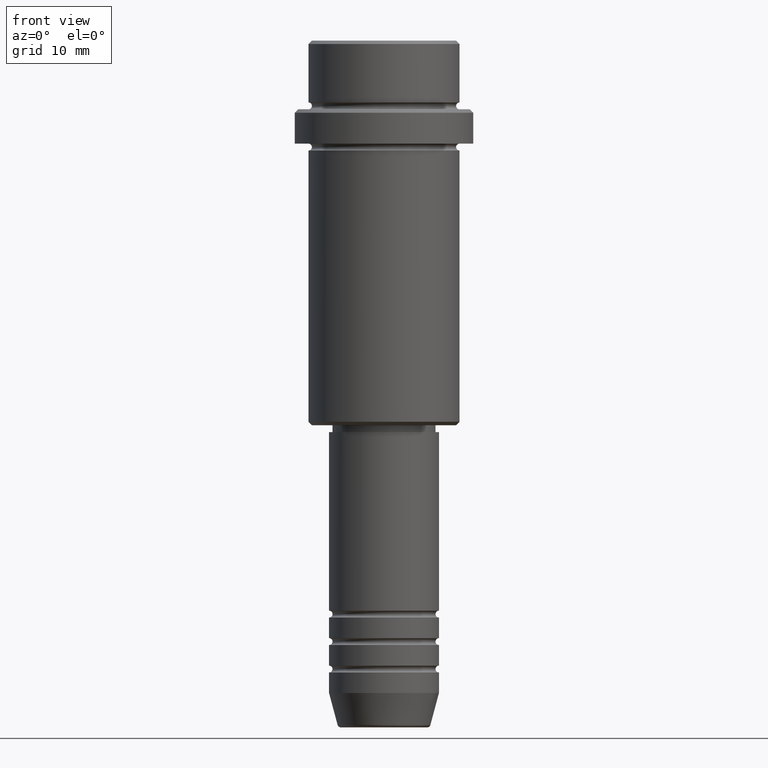
[diagram: clean part render]
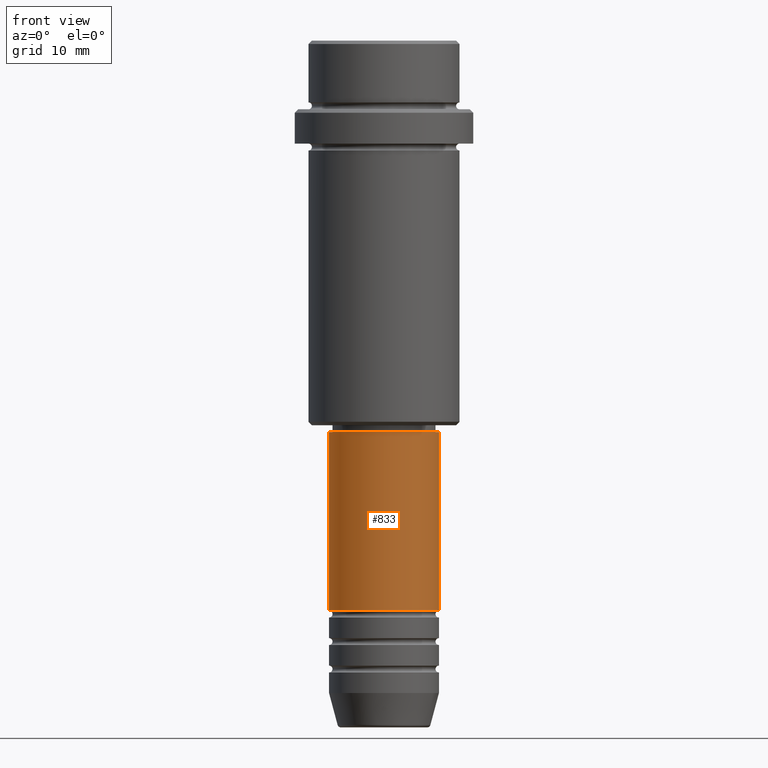
[diagram: same view with one face highlighted and labeled with its STEP entity id]
A machine part, front view. The second image highlights one B-rep face of the part: STEP entity #833.
In plain terms, the highlighted cylindrical surface (partial cylindrical patch) has radius 8 mm, axis along (-0, -0, 1).
Its self-contained STEP definition (entity closure, byte-faithful):
#33 = VERTEX_POINT ( 'NONE', #712 ) ;
#47 = LINE ( 'NONE', #1090, #1043 ) ;
#298 = ORIENTED_EDGE ( 'NONE', *, *, #652, .T. ) ;
#313 = EDGE_CURVE ( 'NONE', #1315, #33, #47, .T. ) ;
#338 = AXIS2_PLACEMENT_3D ( 'NONE', #440, #871, #1307 ) ;
#432 = CIRCLE ( 'NONE', #1130, 8.000000000000000000 ) ;
#437 = VERTEX_POINT ( 'NONE', #1291 ) ;
#440 = CARTESIAN_POINT ( 'NONE',  ( 0.000000000000000000, 0.000000000000000000, -57.00000000000000000 ) ) ;
#477 = DIRECTION ( 'NONE',  ( 1.000000000000000000, 0.000000000000000000, 0.000000000000000000 ) ) ;
#538 = DIRECTION ( 'NONE',  ( -0.000000000000000000, -0.000000000000000000, 1.000000000000000000 ) ) ;
#546 = CYLINDRICAL_SURFACE ( 'NONE', #808, 8.000000000000000000 ) ;
#582 = VECTOR ( 'NONE', #1410, 1000.000000000000000 ) ;
#652 = EDGE_CURVE ( 'NONE', #1315, #437, #432, .T. ) ;
#712 = CARTESIAN_POINT ( 'NONE',  ( -8.000000000000000000, 9.797174393178825657E-16, -57.00000000000000000 ) ) ;
#759 = CARTESIAN_POINT ( 'NONE',  ( 0.000000000000000000, 0.000000000000000000, 0.000000000000000000 ) ) ;
#775 = EDGE_CURVE ( 'NONE', #437, #1349, #1200, .T. ) ;
#808 = AXIS2_PLACEMENT_3D ( 'NONE', #759, #538, #969 ) ;
#833 = ADVANCED_FACE ( 'NONE', ( #1091 ), #546, .T. ) ;
#850 = ORIENTED_EDGE ( 'NONE', *, *, #775, .T. ) ;
#864 = EDGE_CURVE ( 'NONE', #33, #1349, #1412, .T. ) ;
#871 = DIRECTION ( 'NONE',  ( -0.000000000000000000, -0.000000000000000000, 1.000000000000000000 ) ) ;
#969 = DIRECTION ( 'NONE',  ( 1.000000000000000000, 0.000000000000000000, 0.000000000000000000 ) ) ;
#1000 = ORIENTED_EDGE ( 'NONE', *, *, #313, .F. ) ;
#1029 = EDGE_LOOP ( 'NONE', ( #1000, #298, #850, #1039 ) ) ;
#1035 = DIRECTION ( 'NONE',  ( -0.000000000000000000, -0.000000000000000000, 1.000000000000000000 ) ) ;
#1039 = ORIENTED_EDGE ( 'NONE', *, *, #864, .F. ) ;
#1043 = VECTOR ( 'NONE', #1384, 1000.000000000000000 ) ;
#1090 = CARTESIAN_POINT ( 'NONE',  ( -8.000000000000000000, 9.797174393178825657E-16, 0.000000000000000000 ) ) ;
#1091 = FACE_OUTER_BOUND ( 'NONE', #1029, .T. ) ;
#1127 = CARTESIAN_POINT ( 'NONE',  ( 0.000000000000000000, 0.000000000000000000, -82.99999999999988631 ) ) ;
#1130 = AXIS2_PLACEMENT_3D ( 'NONE', #1127, #1035, #477 ) ;
#1194 = CARTESIAN_POINT ( 'NONE',  ( 8.000000000000000000, 0.000000000000000000, 0.000000000000000000 ) ) ;
#1200 = LINE ( 'NONE', #1194, #582 ) ;
#1260 = CARTESIAN_POINT ( 'NONE',  ( -8.000000000000000000, 9.797174393178825657E-16, -82.99999999999988631 ) ) ;
#1291 = CARTESIAN_POINT ( 'NONE',  ( 8.000000000000000000, 0.000000000000000000, -82.99999999999988631 ) ) ;
#1307 = DIRECTION ( 'NONE',  ( 1.000000000000000000, 0.000000000000000000, 0.000000000000000000 ) ) ;
#1315 = VERTEX_POINT ( 'NONE', #1260 ) ;
#1348 = CARTESIAN_POINT ( 'NONE',  ( 8.000000000000000000, 0.000000000000000000, -57.00000000000000000 ) ) ;
#1349 = VERTEX_POINT ( 'NONE', #1348 ) ;
#1384 = DIRECTION ( 'NONE',  ( -0.000000000000000000, -0.000000000000000000, 1.000000000000000000 ) ) ;
#1410 = DIRECTION ( 'NONE',  ( -0.000000000000000000, -0.000000000000000000, 1.000000000000000000 ) ) ;
#1412 = CIRCLE ( 'NONE', #338, 8.000000000000000000 ) ;